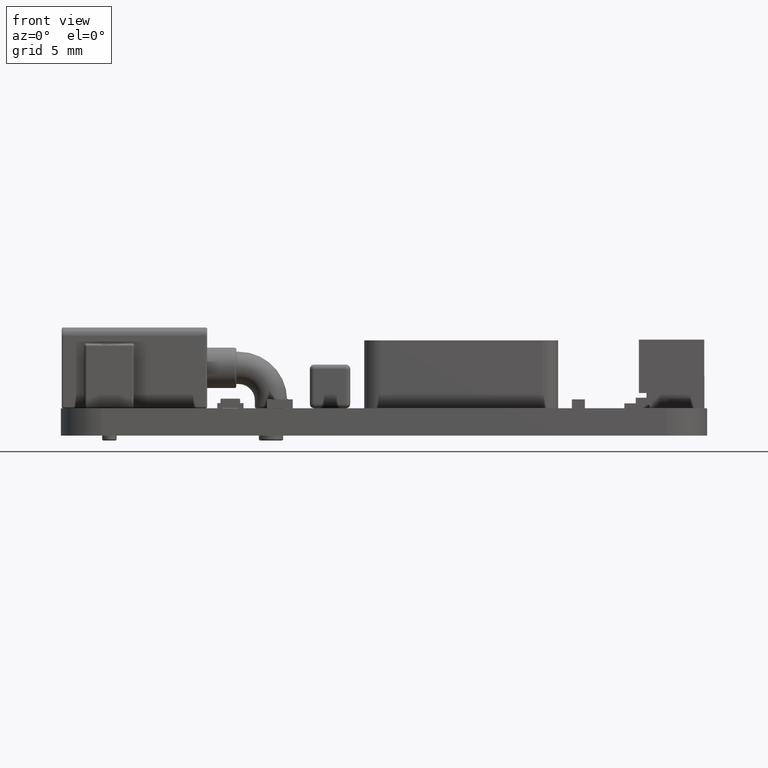
[diagram: clean part render]
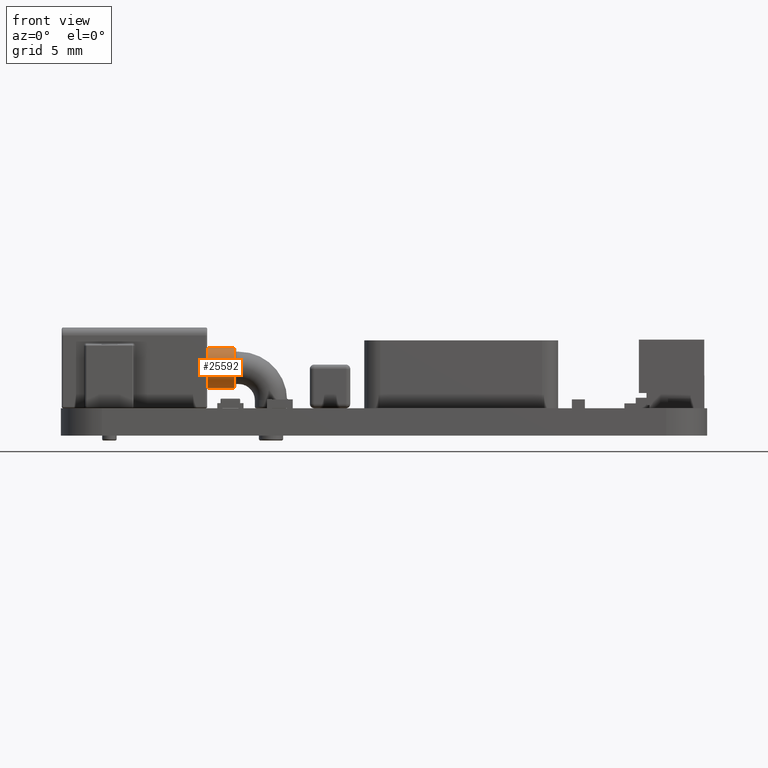
[diagram: same view with one face highlighted and labeled with its STEP entity id]
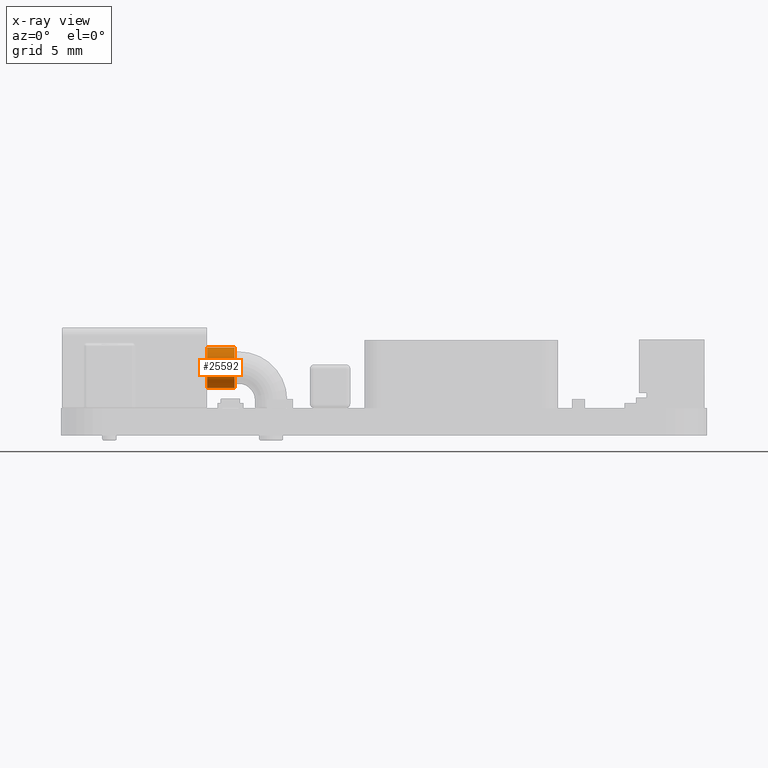
[diagram: x-ray of the same camera — body ghosted, the highlighted face saturated]
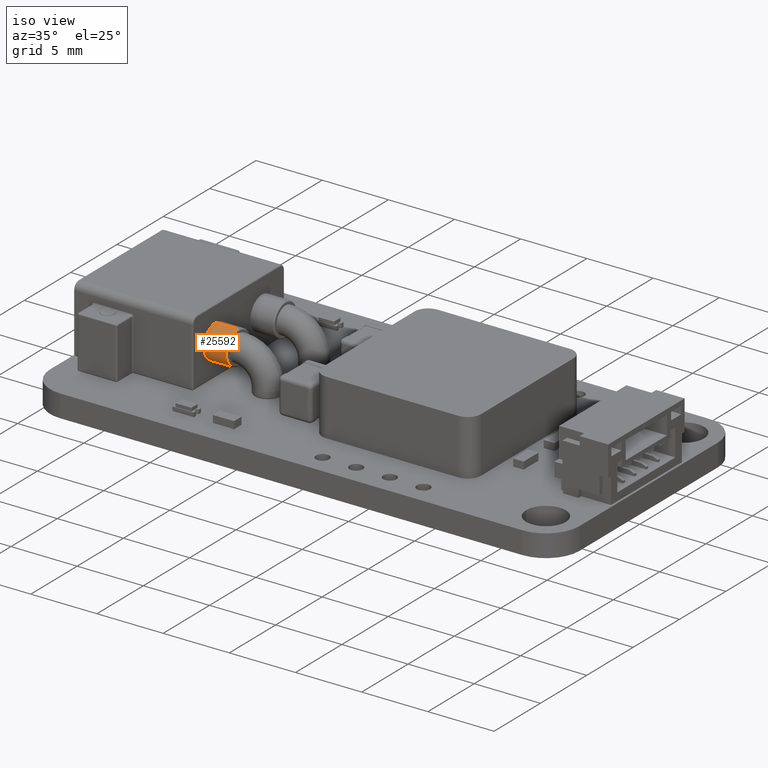
[diagram: same view with one face highlighted and labeled with its STEP entity id]
A machine part, front view. The second image highlights one B-rep face of the part: STEP entity #25592.
The next image is the same camera in x-ray: the body ghosted, the highlighted face saturated — about 0% of this face is hidden behind the body in this view.
A second angle (iso view) of the same face is appended — the face is thin or edge-on in the first view.
In plain terms, the highlighted cylindrical surface (edge-blend (fillet) strip) has radius 1.25 mm, axis along (-1, -0, 0).
Its self-contained STEP definition (entity closure, byte-faithful):
#32 = CIRCLE ( 'NONE', #9898, 1.249999999999999778 ) ;
#35 = FACE_OUTER_BOUND ( 'NONE', #23416, .T. ) ;
#302 = VERTEX_POINT ( 'NONE', #829 ) ;
#397 = CARTESIAN_POINT ( 'NONE',  ( 36.25690198740679193, 32.84791675094102459, 2.499999999999999556 ) ) ;
#829 = CARTESIAN_POINT ( 'NONE',  ( 34.45690198740681609, 32.84791643621903035, 1.249999999999999778 ) ) ;
#1435 = LINE ( 'NONE', #31537, #33201 ) ;
#3521 = DIRECTION ( 'NONE',  ( 0.9999999999999849010, 1.748455529999999694E-07, 0.000000000000000000 ) ) ;
#3985 = CARTESIAN_POINT ( 'NONE',  ( 36.25690198740679193, 32.84791675094102459, 3.749999999999999556 ) ) ;
#4091 = DIRECTION ( 'NONE',  ( 0.000000000000000000, 0.000000000000000000, 1.000000000000000000 ) ) ;
#4993 = VERTEX_POINT ( 'NONE', #12325 ) ;
#6013 = ORIENTED_EDGE ( 'NONE', *, *, #12551, .F. ) ;
#6642 = AXIS2_PLACEMENT_3D ( 'NONE', #7813, #13978, #31376 ) ;
#7813 = CARTESIAN_POINT ( 'NONE',  ( 36.15690198740678341, 32.84791673345646501, 2.499999999999999556 ) ) ;
#9898 = AXIS2_PLACEMENT_3D ( 'NONE', #33475, #3521, #4091 ) ;
#11799 = DIRECTION ( 'NONE',  ( -0.9999999999999846789, -1.748455529999999430E-07, 0.000000000000000000 ) ) ;
#12325 = CARTESIAN_POINT ( 'NONE',  ( 36.15690198740678341, 32.84791673345646501, 3.749999999999999556 ) ) ;
#12551 = EDGE_CURVE ( 'NONE', #19837, #302, #1435, .T. ) ;
#12936 = ORIENTED_EDGE ( 'NONE', *, *, #14949, .T. ) ;
#13978 = DIRECTION ( 'NONE',  ( -0.9999999999999849010, -1.748455529999999694E-07, 0.000000000000000000 ) ) ;
#14140 = VECTOR ( 'NONE', #21195, 1000.000000000000227 ) ;
#14868 = DIRECTION ( 'NONE',  ( 0.000000000000000000, 0.000000000000000000, 1.000000000000000000 ) ) ;
#14949 = EDGE_CURVE ( 'NONE', #4993, #24763, #33554, .T. ) ;
#16482 = EDGE_CURVE ( 'NONE', #24763, #302, #32, .T. ) ;
#18377 = EDGE_CURVE ( 'NONE', #19837, #4993, #35624, .T. ) ;
#19837 = VERTEX_POINT ( 'NONE', #24662 ) ;
#20489 = CARTESIAN_POINT ( 'NONE',  ( 34.45690198740681609, 32.84791643621903035, 3.749999999999999556 ) ) ;
#21195 = DIRECTION ( 'NONE',  ( -0.9999999999999846789, -1.748455529999999430E-07, 0.000000000000000000 ) ) ;
#21657 = ORIENTED_EDGE ( 'NONE', *, *, #16482, .T. ) ;
#23416 = EDGE_LOOP ( 'NONE', ( #6013, #32849, #12936, #21657 ) ) ;
#24662 = CARTESIAN_POINT ( 'NONE',  ( 36.15690198740678341, 32.84791673345646501, 1.249999999999999778 ) ) ;
#24763 = VERTEX_POINT ( 'NONE', #20489 ) ;
#25592 = ADVANCED_FACE ( 'NONE', ( #35 ), #26908, .T. ) ;
#26908 = CYLINDRICAL_SURFACE ( 'NONE', #34685, 1.249999999999999778 ) ;
#28266 = DIRECTION ( 'NONE',  ( -0.9999999999999846789, -1.748455529999999430E-07, 0.000000000000000000 ) ) ;
#31376 = DIRECTION ( 'NONE',  ( 0.000000000000000000, 0.000000000000000000, -1.000000000000000000 ) ) ;
#31537 = CARTESIAN_POINT ( 'NONE',  ( 36.25690198740679193, 32.84791675094102459, 1.249999999999999778 ) ) ;
#32849 = ORIENTED_EDGE ( 'NONE', *, *, #18377, .T. ) ;
#33201 = VECTOR ( 'NONE', #28266, 1000.000000000000227 ) ;
#33475 = CARTESIAN_POINT ( 'NONE',  ( 34.45690198740681609, 32.84791643621903035, 2.499999999999999556 ) ) ;
#33554 = LINE ( 'NONE', #3985, #14140 ) ;
#34685 = AXIS2_PLACEMENT_3D ( 'NONE', #397, #11799, #14868 ) ;
#35624 = CIRCLE ( 'NONE', #6642, 1.249999999999999778 ) ;